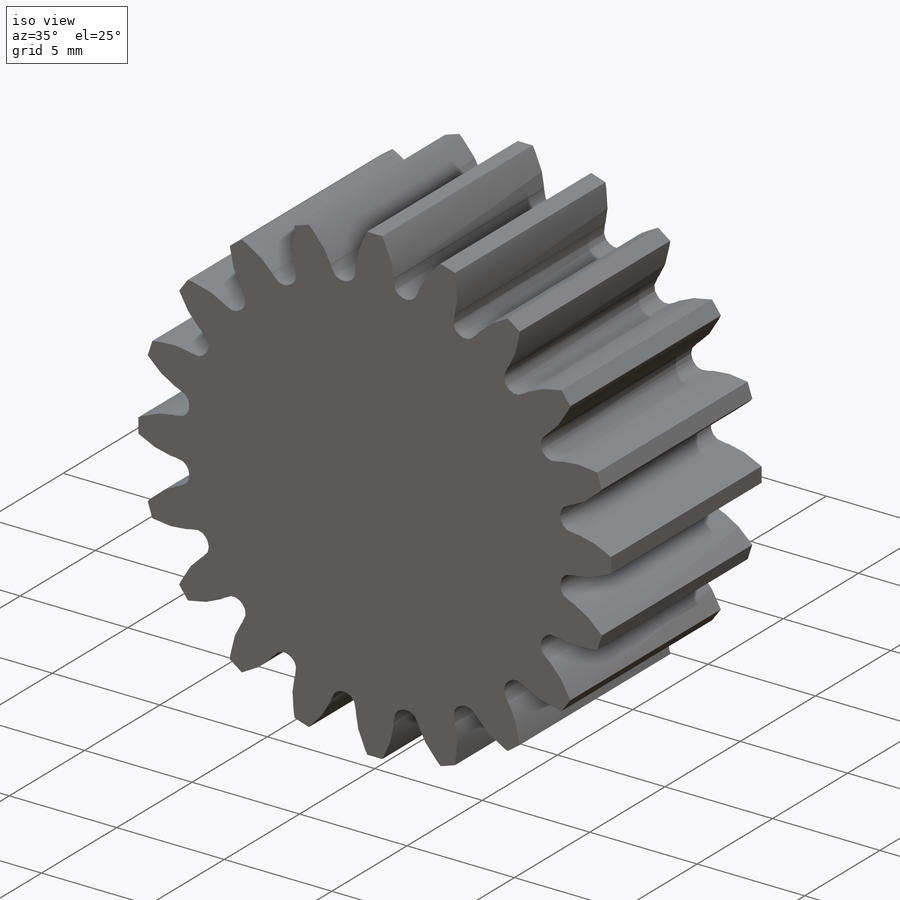
[diagram: iso view]
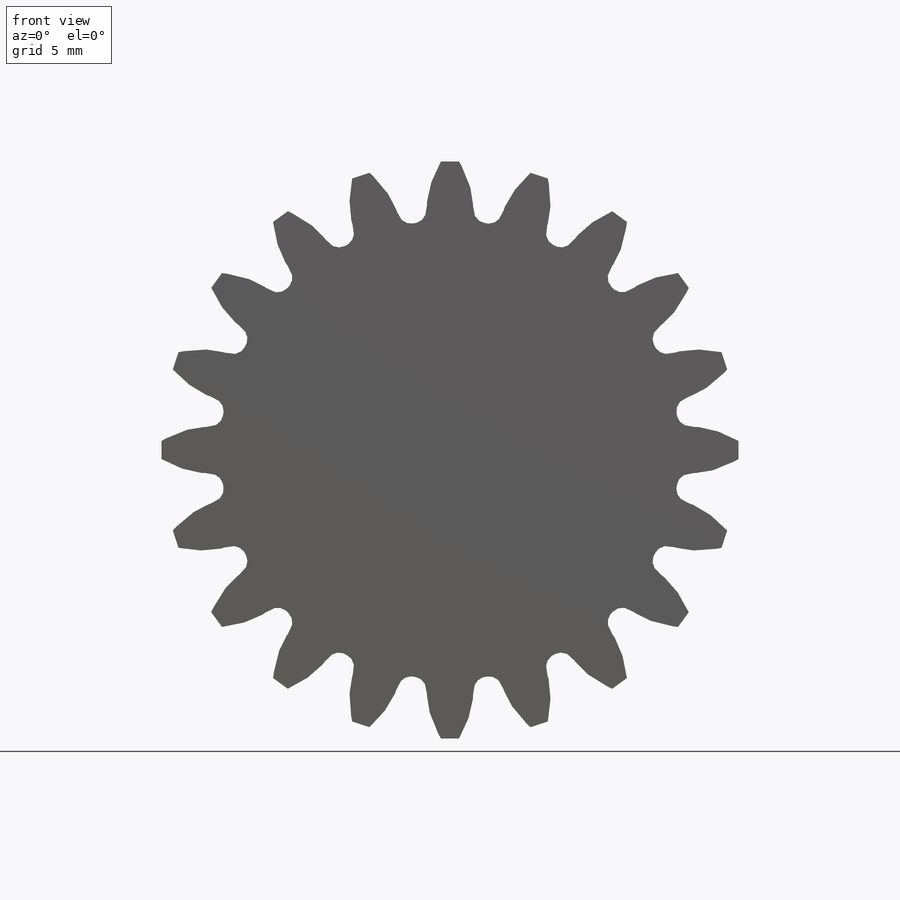
[diagram: front view]
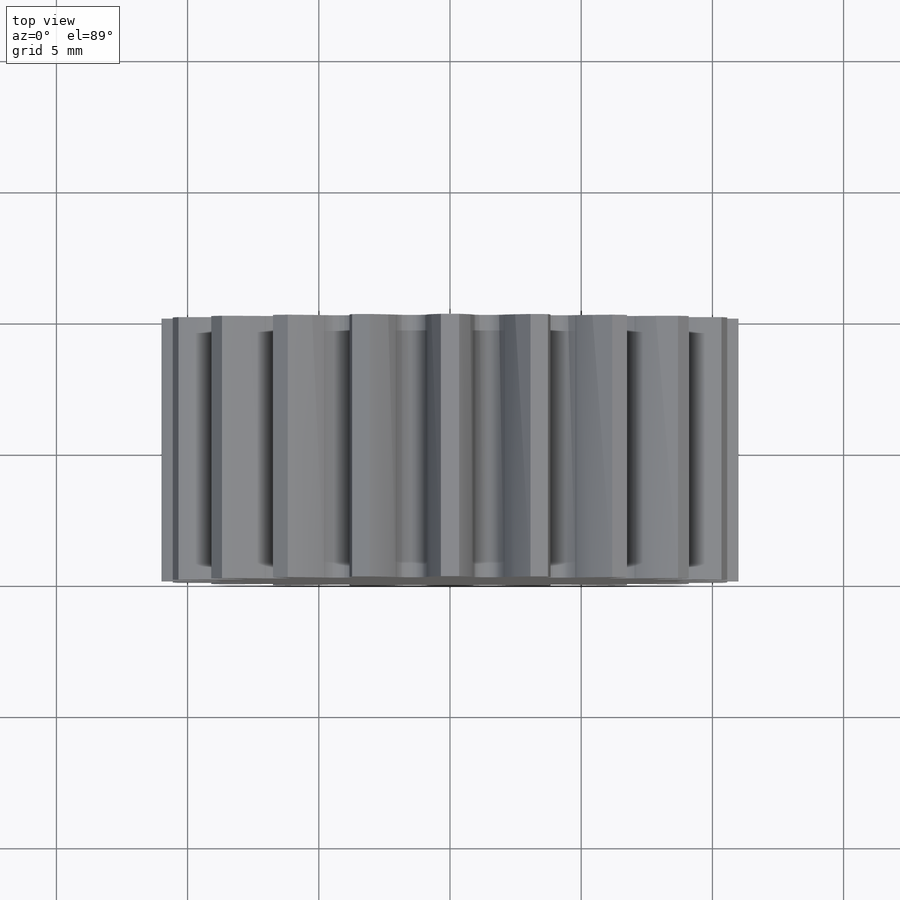
[diagram: top view]
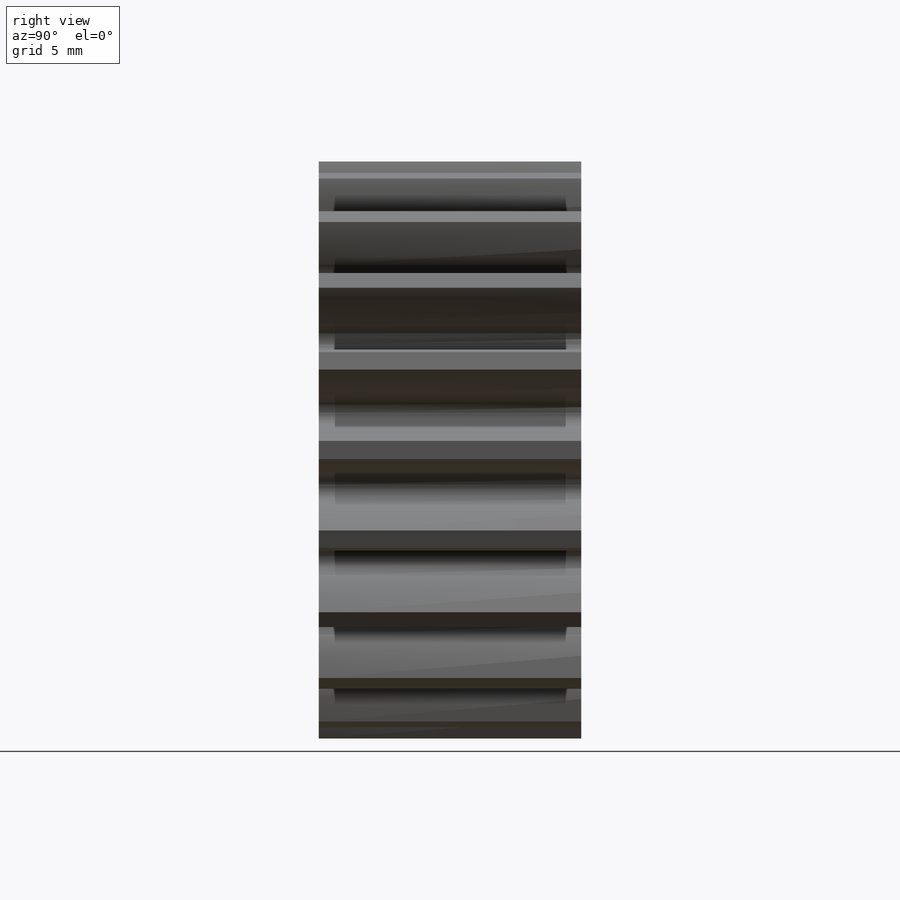
[diagram: right view]
SOLIDWORKS PART (.sldprt)
format: sldprt  version: not decoded by parser v0  size: 559,104 bytes
history: native  units: mm
features: sketch x3, material x1, extrude x1, pattern_circular x1, cut_extrude x1 + 1 further entry (+12 scaffold rows collapsed)
feature tree (20):
  scaffold x12  (default folders/planes/origin — collapsed)
  material  "Material <not specified>"
  "Design Table"
  sketch  "Pitch Diameter"  dims[D1=20.0mm]
  sketch  "Sketch1"  dims[c1.D1=14.0mm c1.D2=5.0mm c1.D3=14.0mm c1.D4=~22.241922mm c2.D1=~5.360874mm c2.D2=~9.467075mm c3.D1=0.0mm c3.D2=0.0mm c3.D3=~0.23315mm c3.D4=~0.422349mm c3.D5=~0.571451mm c3.D6=~0.684653mm c3.D7=~0.766452mm c3.D8=~0.821605mm c3.D9=~0.855086mm c3.D10=~0.872044mm c3.D11=~0.877755mm c3.D12=~0.877574mm c3.D13=0.8771mm c3.D14=~0.876627mm c3.D15=~0.880607mm c3.D16=~0.889958mm c3.D17=~0.90557mm c3.D18=~0.929092mm c3.D19=~0.963461mm c3.D20=~1.013552mm c3.D21=~1.086236mm c3.D22=~1.187359mm c3.D23=~1.313155mm c3.D24=0.0mm c3.D25=~11.538337mm c3.D26=~11.187574mm c3.D27=~10.857685mm c3.D28=~10.552784mm c3.D29=~10.276563mm c3.D30=~10.032263mm c3.D31=~9.822655mm c3.D32=~9.650017mm c3.D33=~9.51612mm c3.D34=~9.422214mm c3.D35=~9.369023mm c3.D36=~9.32873mm c3.D37=~9.288438mm c3.D38=~9.210421mm c3.D39=~9.134338mm c3.D40=~9.059318mm c3.D41=~8.984274mm c3.D42=~8.90813mm c3.D43=~8.830655mm c3.D44=~8.75464mm c3.D45=~8.689412mm c3.D46=~8.650903mm]
  extrude  "Tooth"  Depth=10mm
  pattern_circular  "Teeth"  Count=20 Angle=18deg
  sketch  "Sketch6"  dims[D1=22.0mm]
  cut_extrude  "Addendum"  [1 undecoded]
decode coverage: 5 of 6 modeling features carry decoded parameters; 1 rows unclassified (native names shown)
note: ~ marks probable driven/reference dimensions
note: 1 parameter value undecoded
note: suppression state not decoded; provenance and decode notes live in map.json
